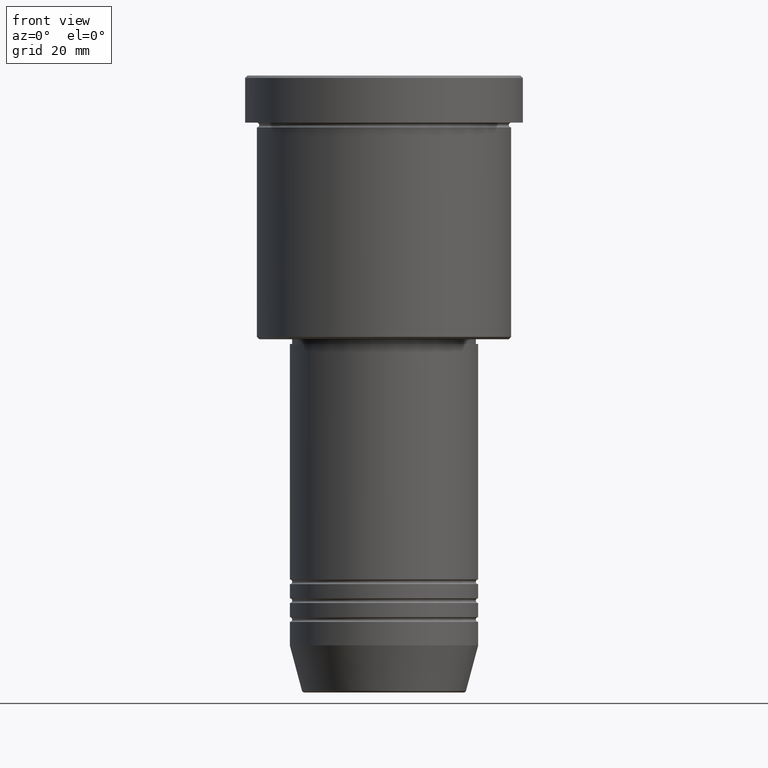
[diagram: clean part render]
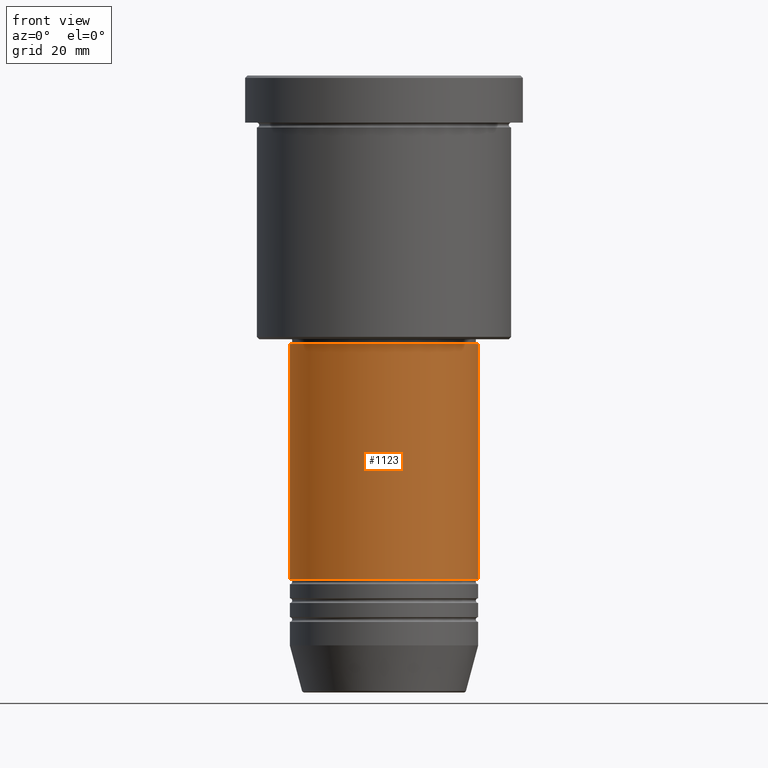
[diagram: same view with one face highlighted and labeled with its STEP entity id]
A machine part, front view. The second image highlights one B-rep face of the part: STEP entity #1123.
In plain terms, the highlighted cylindrical surface (partial cylindrical patch) has radius 20 mm, axis along (-0, -0, 1).
Its self-contained STEP definition (entity closure, byte-faithful):
#6 = DIRECTION ( 'NONE',  ( -0.000000000000000000, -0.000000000000000000, 1.000000000000000000 ) ) ;
#35 = VERTEX_POINT ( 'NONE', #866 ) ;
#66 = CARTESIAN_POINT ( 'NONE',  ( 0.000000000000000000, 0.000000000000000000, -106.9999999999998863 ) ) ;
#115 = CARTESIAN_POINT ( 'NONE',  ( 0.000000000000000000, 0.000000000000000000, -56.99999999999998579 ) ) ;
#154 = CARTESIAN_POINT ( 'NONE',  ( 19.99999999999999645, 0.000000000000000000, 0.000000000000000000 ) ) ;
#249 = DIRECTION ( 'NONE',  ( 1.000000000000000000, 0.000000000000000000, 0.000000000000000000 ) ) ;
#261 = VECTOR ( 'NONE', #371, 1000.000000000000000 ) ;
#285 = VERTEX_POINT ( 'NONE', #873 ) ;
#303 = EDGE_CURVE ( 'NONE', #285, #636, #1047, .T. ) ;
#334 = ORIENTED_EDGE ( 'NONE', *, *, #489, .F. ) ;
#362 = LINE ( 'NONE', #154, #261 ) ;
#370 = EDGE_LOOP ( 'NONE', ( #785, #565, #476, #334 ) ) ;
#371 = DIRECTION ( 'NONE',  ( -0.000000000000000000, -0.000000000000000000, 1.000000000000000000 ) ) ;
#378 = EDGE_CURVE ( 'NONE', #636, #499, #362, .T. ) ;
#455 = CARTESIAN_POINT ( 'NONE',  ( -19.99999999999999645, 2.449293598294706119E-15, 0.000000000000000000 ) ) ;
#476 = ORIENTED_EDGE ( 'NONE', *, *, #378, .T. ) ;
#489 = EDGE_CURVE ( 'NONE', #35, #499, #697, .T. ) ;
#499 = VERTEX_POINT ( 'NONE', #838 ) ;
#565 = ORIENTED_EDGE ( 'NONE', *, *, #303, .T. ) ;
#591 = AXIS2_PLACEMENT_3D ( 'NONE', #66, #616, #249 ) ;
#611 = AXIS2_PLACEMENT_3D ( 'NONE', #115, #6, #945 ) ;
#616 = DIRECTION ( 'NONE',  ( -0.000000000000000000, -0.000000000000000000, 1.000000000000000000 ) ) ;
#634 = CARTESIAN_POINT ( 'NONE',  ( 0.000000000000000000, 0.000000000000000000, 0.000000000000000000 ) ) ;
#636 = VERTEX_POINT ( 'NONE', #1086 ) ;
#644 = FACE_OUTER_BOUND ( 'NONE', #370, .T. ) ;
#660 = AXIS2_PLACEMENT_3D ( 'NONE', #634, #983, #1167 ) ;
#697 = CIRCLE ( 'NONE', #611, 19.99999999999999645 ) ;
#719 = CYLINDRICAL_SURFACE ( 'NONE', #660, 19.99999999999999645 ) ;
#723 = VECTOR ( 'NONE', #912, 1000.000000000000000 ) ;
#785 = ORIENTED_EDGE ( 'NONE', *, *, #1170, .F. ) ;
#838 = CARTESIAN_POINT ( 'NONE',  ( 19.99999999999999645, 0.000000000000000000, -56.99999999999998579 ) ) ;
#866 = CARTESIAN_POINT ( 'NONE',  ( -19.99999999999999645, 2.449293598294706119E-15, -56.99999999999998579 ) ) ;
#873 = CARTESIAN_POINT ( 'NONE',  ( -20.00000000000000000, 2.449293598294706513E-15, -106.9999999999998863 ) ) ;
#912 = DIRECTION ( 'NONE',  ( -0.000000000000000000, -0.000000000000000000, 1.000000000000000000 ) ) ;
#945 = DIRECTION ( 'NONE',  ( 1.000000000000000000, 0.000000000000000000, 0.000000000000000000 ) ) ;
#983 = DIRECTION ( 'NONE',  ( -0.000000000000000000, -0.000000000000000000, 1.000000000000000000 ) ) ;
#1047 = CIRCLE ( 'NONE', #591, 20.00000000000000000 ) ;
#1086 = CARTESIAN_POINT ( 'NONE',  ( 20.00000000000000000, 0.000000000000000000, -106.9999999999998863 ) ) ;
#1123 = ADVANCED_FACE ( 'NONE', ( #644 ), #719, .T. ) ;
#1167 = DIRECTION ( 'NONE',  ( 1.000000000000000000, 0.000000000000000000, 0.000000000000000000 ) ) ;
#1170 = EDGE_CURVE ( 'NONE', #285, #35, #1171, .T. ) ;
#1171 = LINE ( 'NONE', #455, #723 ) ;